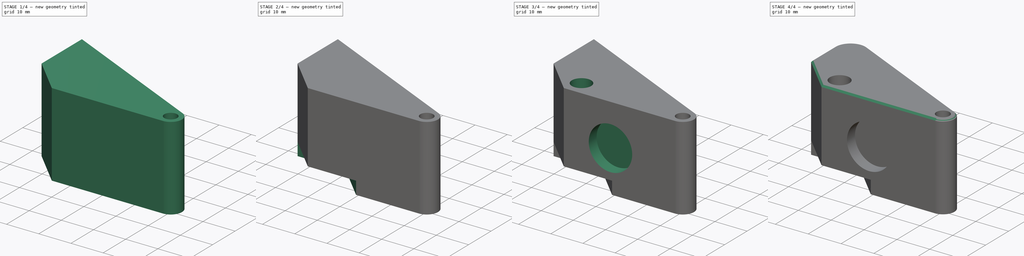
[diagram: build sequence overview — one tinted view per stage of 4, left to right]
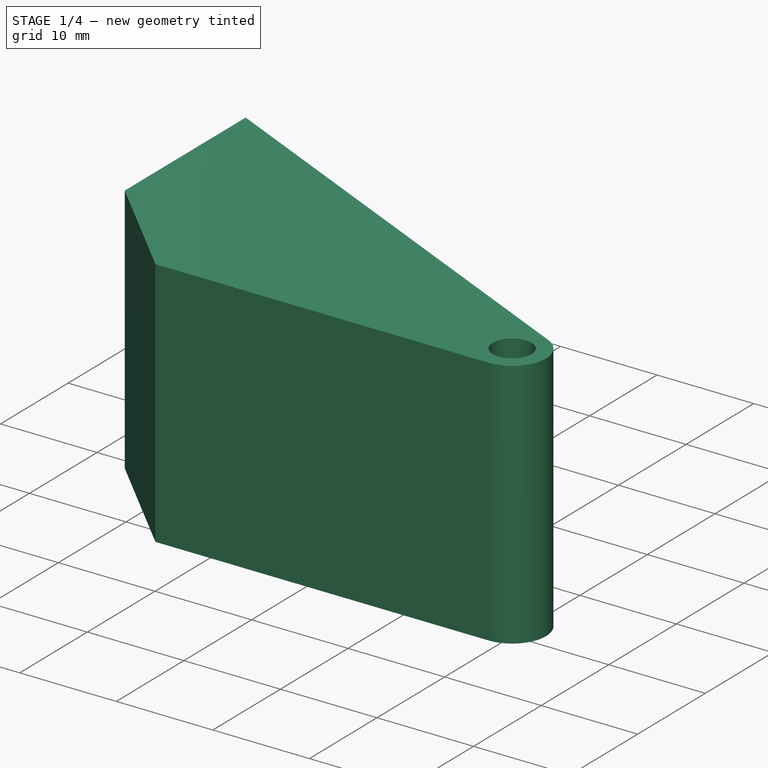
[diagram: stage 1 of 4 — iso view after this stage's code; geometry added in this stage tinted green]
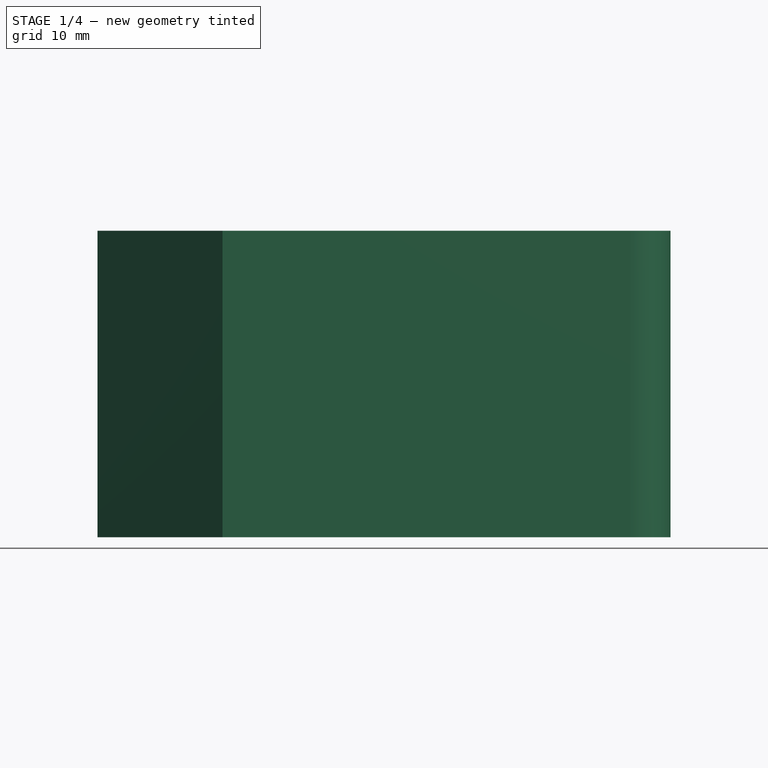
[diagram: stage 1 of 4 — front view after this stage's code; geometry added in this stage tinted green]
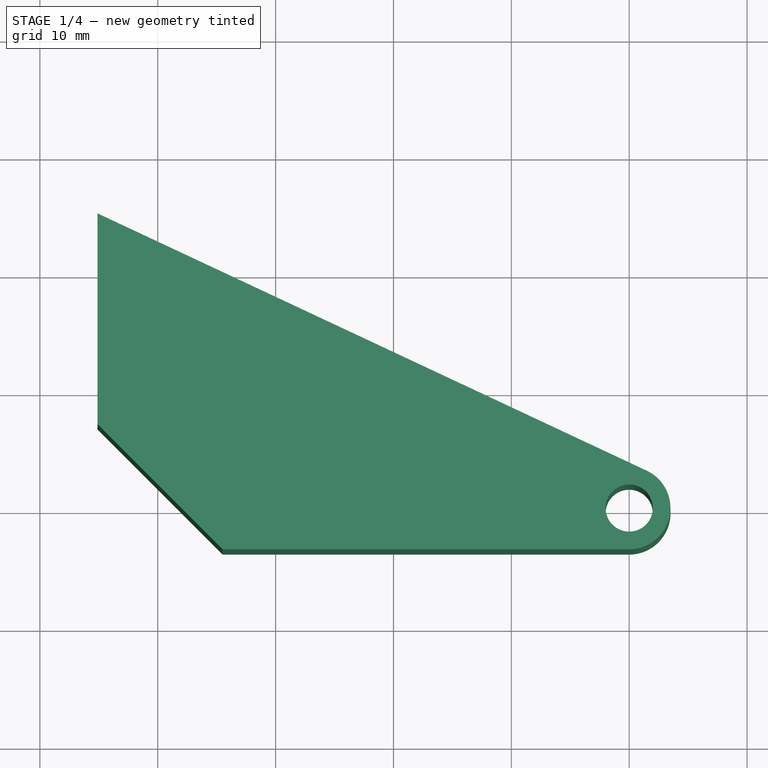
[diagram: stage 1 of 4 — top view after this stage's code; geometry added in this stage tinted green]
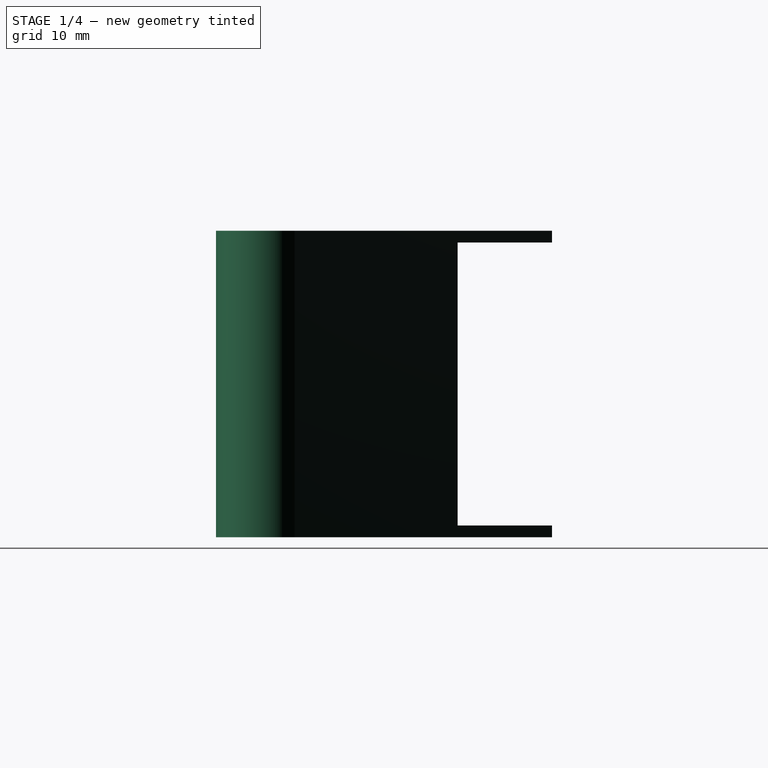
[diagram: stage 1 of 4 — right view after this stage's code; geometry added in this stage tinted green]
FCSTD DOCUMENT  (FreeCAD 0.18.4R)
Label: tension-arm
License: All rights reserved
LicenseURL: http://en.wikipedia.org/wiki/All_rights_reserved
objects: Sketcher::SketchObject×5, PartDesign::Pocket×4, PartDesign::Chamfer×2, PartDesign::Fillet×2, PartDesign::Pad×1, PartDesign::Plane×1, PartDesign::Body×1
note: 21 computed .brp shape members not serialized (recipe doc carries the construction recipe); baked Part::Feature solids carry a one-line shape summary decoded from their .brp

FEATURE [Sketcher::SketchObject] Sketch
  MapMode = 5
  Support = -> [XY_Plane]
  sketch-geometry (6):
    g0: Circle CenterX=0 CenterY=0 CenterZ=0 NormalX=0 NormalY=0 NormalZ=1 AngleXU=0 Radius=2
    g1: ArcOfCircle CenterX=0 CenterY=0 CenterZ=0 NormalX=0 NormalY=0 NormalZ=1 AngleXU=0 Radius=3.5 StartAngle=4.71239 EndAngle=7.4158
    g2: LineSegment StartX=-45.1066 StartY=25 StartZ=0 EndX=1.48503 EndY=3.16934 EndZ=0
    g3: LineSegment StartX=1.46718e-06 StartY=-3.5 StartZ=0 EndX=-34.5 EndY=-3.5 EndZ=0
    g4: LineSegment StartX=-34.5 StartY=-3.5 StartZ=0 EndX=-45.1066 EndY=7.1066 EndZ=0
    g5: LineSegment StartX=-45.1066 StartY=7.1066 StartZ=0 EndX=-45.1066 EndY=25 EndZ=0
  constraints (17):
    c: Coincident(g0,g-1)
    c: Coincident(g1,g0)
    c: Coincident(g2,g1)
    c: Tangent(g2,g1)
    c: Diameter(g1) = 7
    c: Coincident(g3,g4)
    c: Coincident(g4,g5)
    c: Tangent(g3,g1)
    c: Angle(g3,g4) = 2.35619
    c: Coincident(g1,g3)
    c: Distance(g4) = 15
    c: Distance(g3) = 34.5
    c: Coincident(g5,g2)
    c: Horizontal(g3)
    c: Vertical(g5)
    c: Diameter(g0) = 4
    c: DistanceY(g0,g2) = 25
FEATURE [PartDesign::Pad] Pad
  Length = 26
  Length2 = 100
  Profile = -> Sketch
  Type = 0
FEATURE [PartDesign::Plane] DatumPlane001
  AttachmentOffset = pos=(0,0,13) rot=(0,0,1;0rad)
  Length = 63.523
  MapMode = 2
  Placement = pos=(0,0,13) rot=(0,0,1;0rad)
  ResizeMode = 0
  Support = -> [X_Axis]
  Width = 40.5518
FEATURE [Sketcher::SketchObject] Sketch001
  MapMode = 5
  Placement = pos=(0,0,13) rot=(0,0,1;0rad)
  Support = -> [DatumPlane001]
  sketch-geometry (3):
    g0: LineSegment StartX=-60 StartY=17 StartZ=0 EndX=-10 EndY=17 EndZ=0
    g1: LineSegment StartX=-10 StartY=17 StartZ=0 EndX=-60 EndY=55 EndZ=0
    g2: LineSegment StartX=-60 StartY=55 StartZ=0 EndX=-60 EndY=17 EndZ=0
  constraints (9):
    c: Coincident(g0,g1)
    c: Coincident(g1,g2)
    c: Vertical(g2)
    c: Coincident(g2,g0)
    c: Horizontal(g0)
    c: DistanceX(g0,g-1) = 60
    c: DistanceX(g0,g-1) = 10
    c: DistanceY(g-1,g0) = 17
    c: DistanceY(g-1,g1) = 55
FEATURE [PartDesign::Pocket] Pocket
  BaseFeature = -> Pad
  Length = 12
  Length2 = 12
  Profile = -> Sketch001
  Type = 4
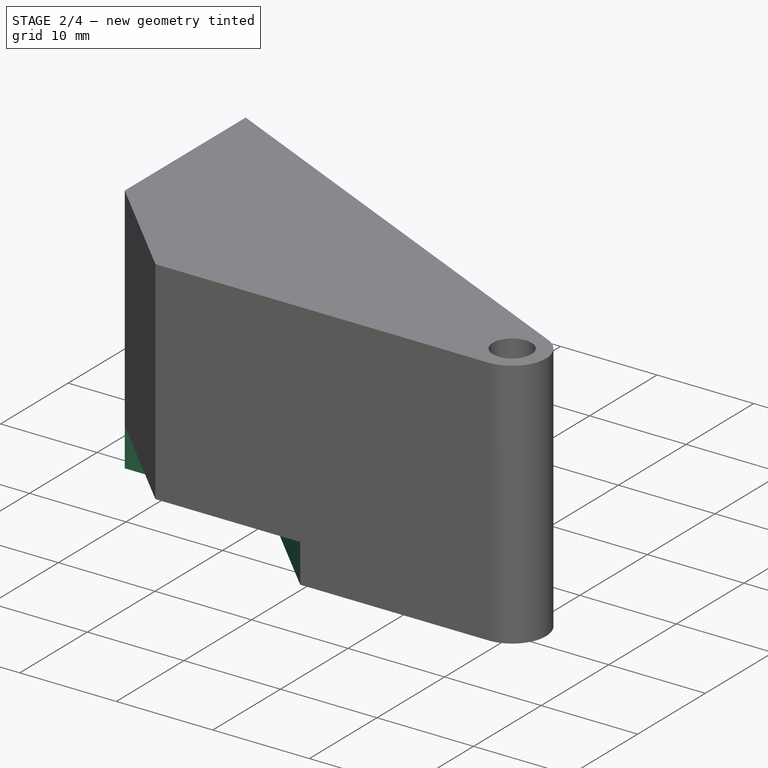
[diagram: stage 2 of 4 — iso view after this stage's code; geometry added in this stage tinted green]
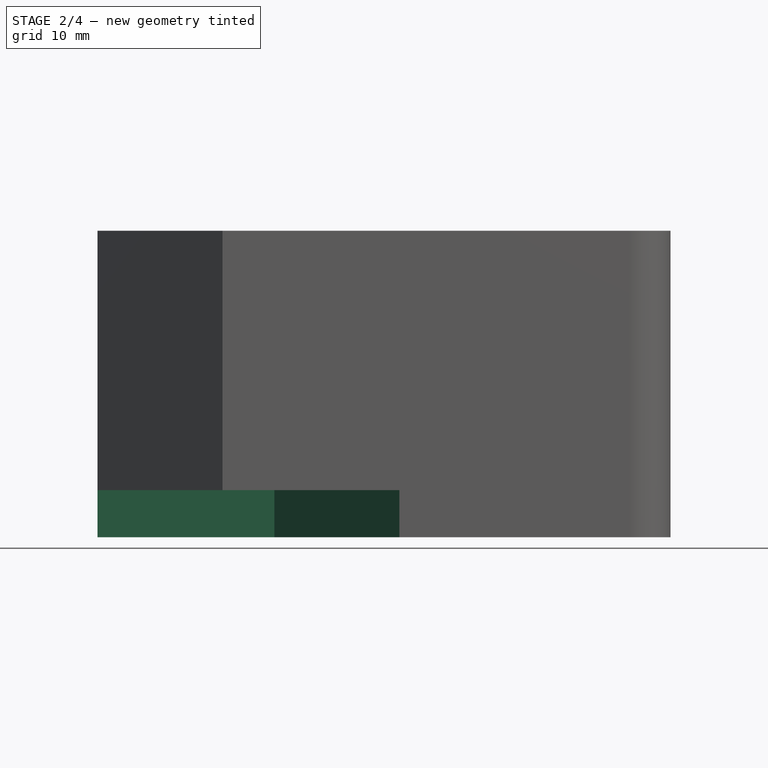
[diagram: stage 2 of 4 — front view after this stage's code; geometry added in this stage tinted green]
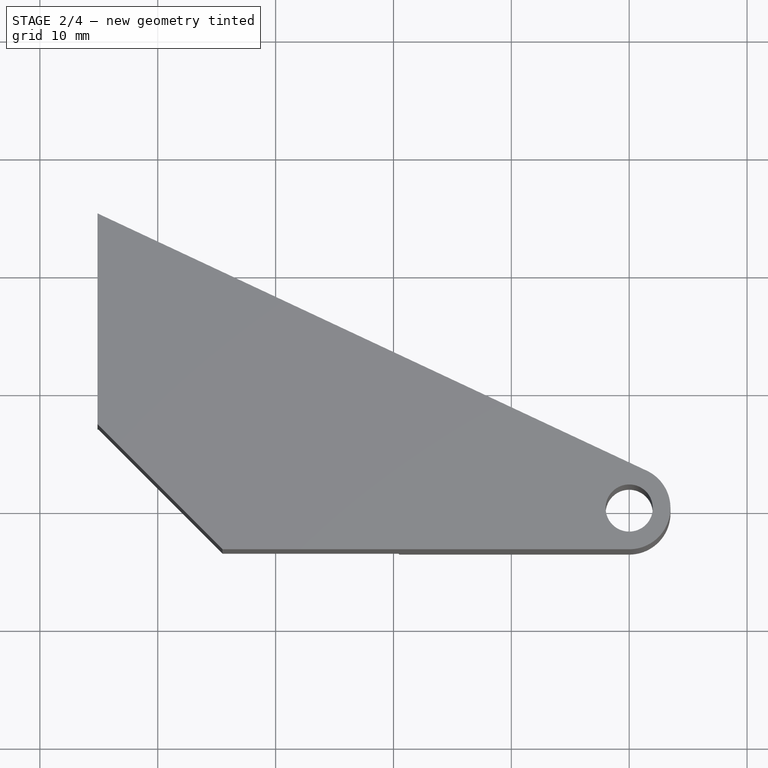
[diagram: stage 2 of 4 — top view after this stage's code; geometry added in this stage tinted green]
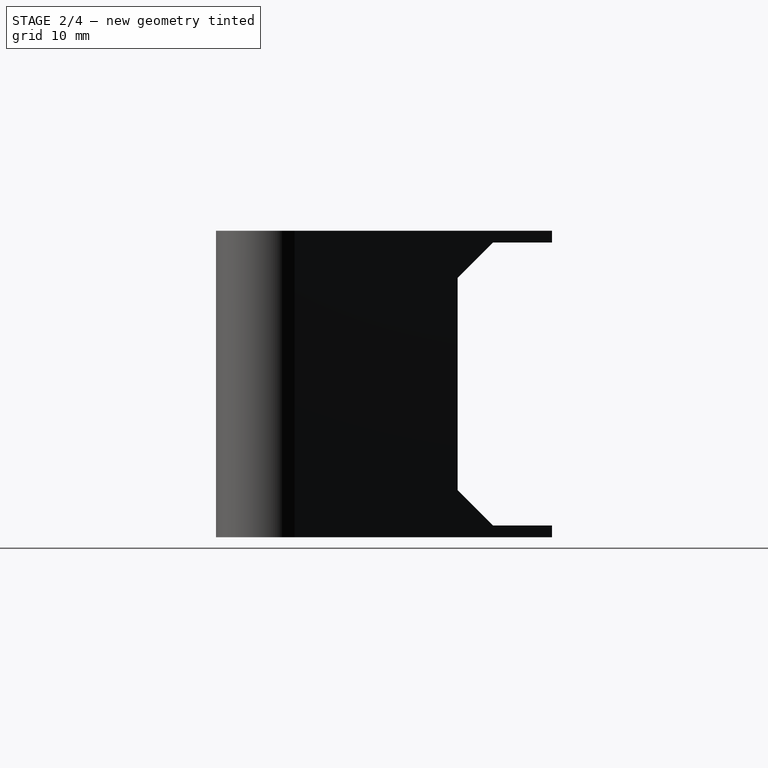
[diagram: stage 2 of 4 — right view after this stage's code; geometry added in this stage tinted green]
FEATURE [Sketcher::SketchObject] Sketch002
  MapMode = 5
  Support = -> [XY_Plane]
  sketch-geometry (4):
    g0: LineSegment StartX=-19.5 StartY=-3.5 StartZ=0 EndX=-30.1066 EndY=7.1066 EndZ=0
    g1: LineSegment StartX=-30.1066 StartY=7.1066 StartZ=0 EndX=-45.1066 EndY=7.1066 EndZ=0
    g2: LineSegment StartX=-45.1066 StartY=7.1066 StartZ=0 EndX=-34.5 EndY=-3.5 EndZ=0
    g3: LineSegment StartX=-34.5 StartY=-3.5 StartZ=0 EndX=-19.5 EndY=-3.5 EndZ=0
  constraints (12):
    c: Coincident(g0,g1)
    c: Coincident(g1,g2)
    c: Coincident(g2,g3)
    c: Coincident(g3,g0)
    c: Distance(g3) = 15
    c: Distance(g2) = 15
    c: Angle(g3,g2) = 2.35619
    c: Parallel(g2,g0)
    c: Parallel(g1,g3)
    c: Horizontal(g3)
    c: DistanceY(g0,g-1) = 3.5
    c: DistanceX(g2,g-1) = 34.5
FEATURE [PartDesign::Pocket] Pocket001
  BaseFeature = -> Pocket
  Length = 4
  Length2 = 100
  Profile = -> Sketch002
  Reversed = true
  Type = 0
FEATURE [PartDesign::Chamfer] Chamfer
  Base = -> Pocket001 [Edge34,Edge33]
  BaseFeature = -> Pocket001
  Size = 3
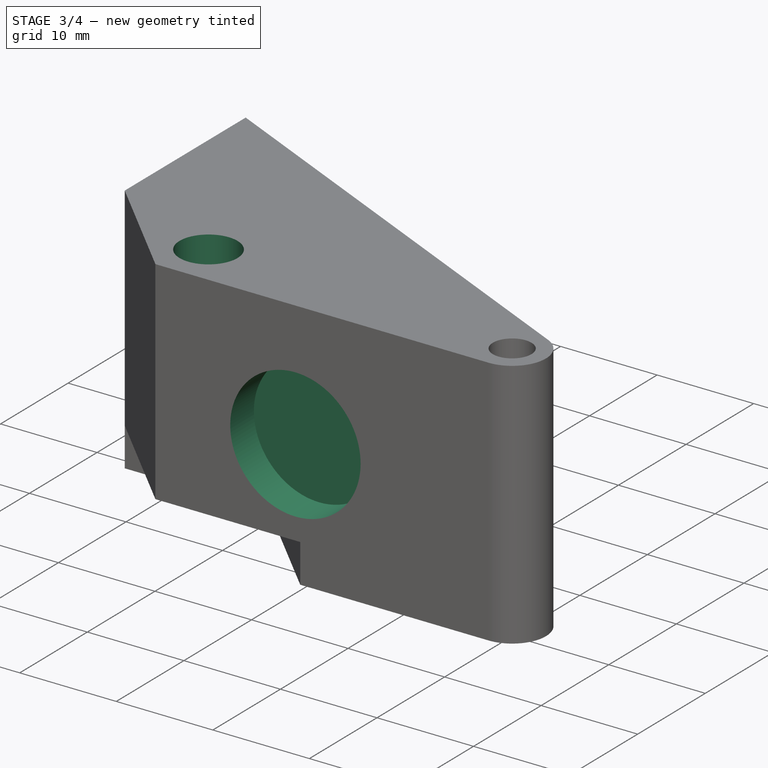
[diagram: stage 3 of 4 — iso view after this stage's code; geometry added in this stage tinted green]
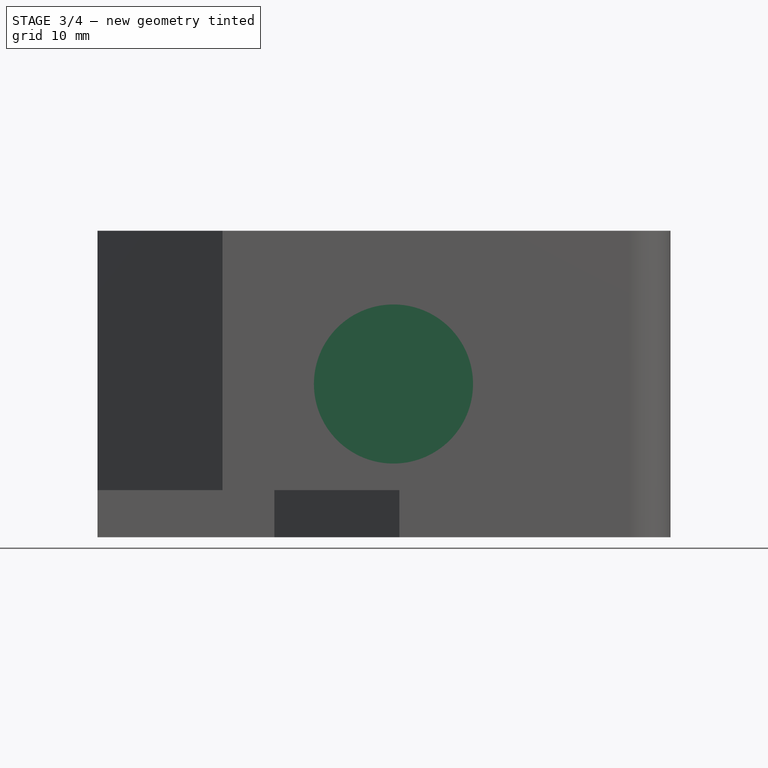
[diagram: stage 3 of 4 — front view after this stage's code; geometry added in this stage tinted green]
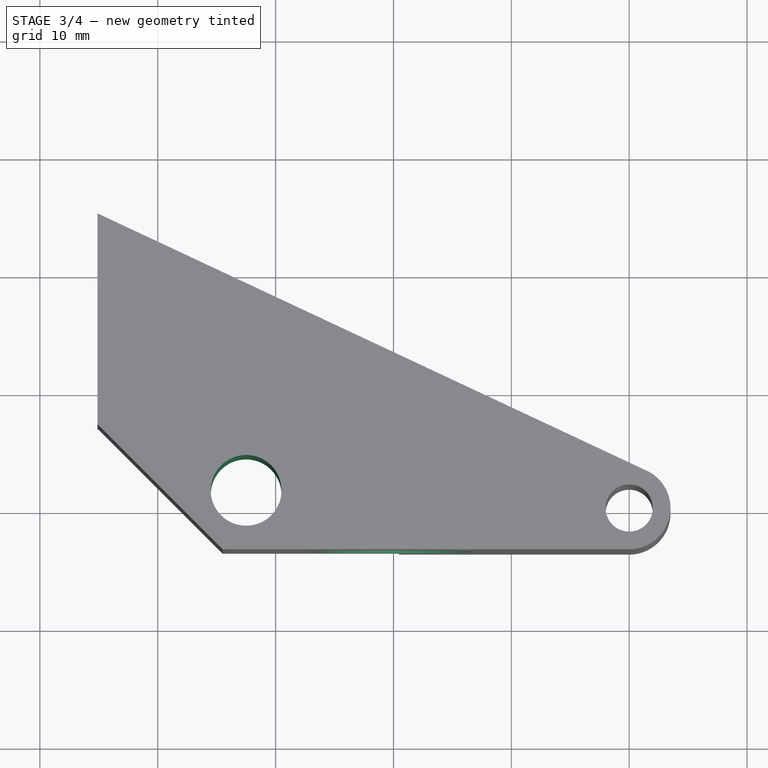
[diagram: stage 3 of 4 — top view after this stage's code; geometry added in this stage tinted green]
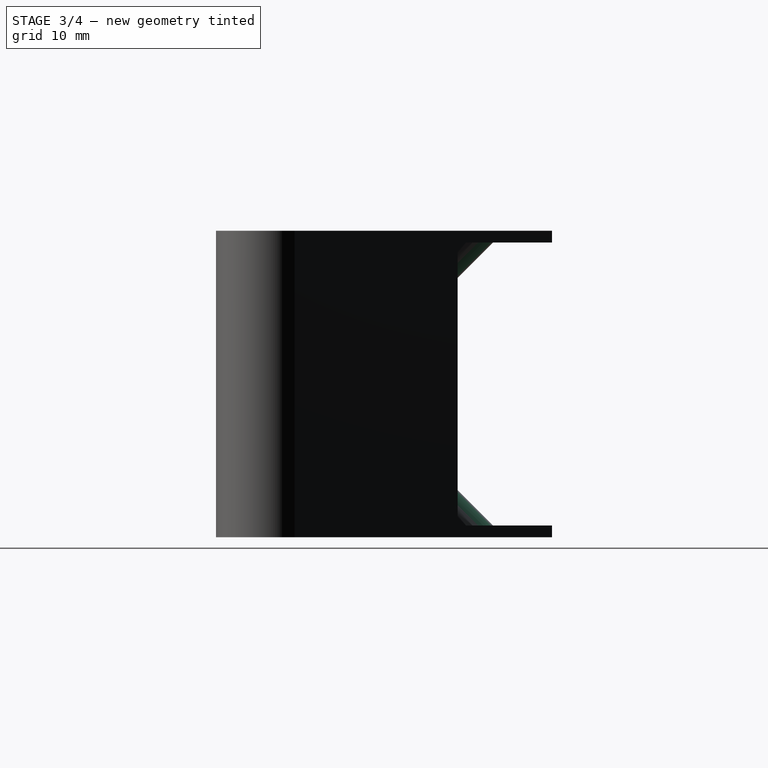
[diagram: stage 3 of 4 — right view after this stage's code; geometry added in this stage tinted green]
FEATURE [Sketcher::SketchObject] Sketch003
  MapMode = 5
  Support = -> [XY_Plane]
  sketch-geometry (1):
    g0: Circle CenterX=-32.5 CenterY=1.5 CenterZ=0 NormalX=0 NormalY=0 NormalZ=1 AngleXU=0 Radius=3
  constraints (3):
    c: Diameter(g0) = 6
    c: DistanceX(g0,g-1) = 32.5
    c: DistanceY(g-1,g0) = 1.5
FEATURE [PartDesign::Pocket] Pocket002
  BaseFeature = -> Chamfer
  Length = 26
  Length2 = 100
  Profile = -> Sketch003
  Reversed = true
  Type = 0
FEATURE [Sketcher::SketchObject] Sketch004
  MapMode = 5
  Placement = pos=(0,0,0) rot=(1,0,0;1.5708rad)
  Support = -> [XZ_Plane]
  sketch-geometry (1):
    g0: Circle CenterX=-20 CenterY=13 CenterZ=0 NormalX=0 NormalY=0 NormalZ=1 AngleXU=0 Radius=6.75
  constraints (3):
    c: Diameter(g0) = 13.5
    c: DistanceY(g-1,g0) = 13
    c: DistanceX(g0,g-1) = 20
FEATURE [PartDesign::Pocket] Pocket003
  BaseFeature = -> Pocket002
  Length = 5
  Length2 = 100
  Profile = -> Sketch004
  Reversed = true
  Type = 0
FEATURE [PartDesign::Fillet] Fillet
  Base = -> Pocket003 [Edge17,Edge16,Edge13,Edge2,Edge6]
  BaseFeature = -> Pocket003
  Radius = 4.5
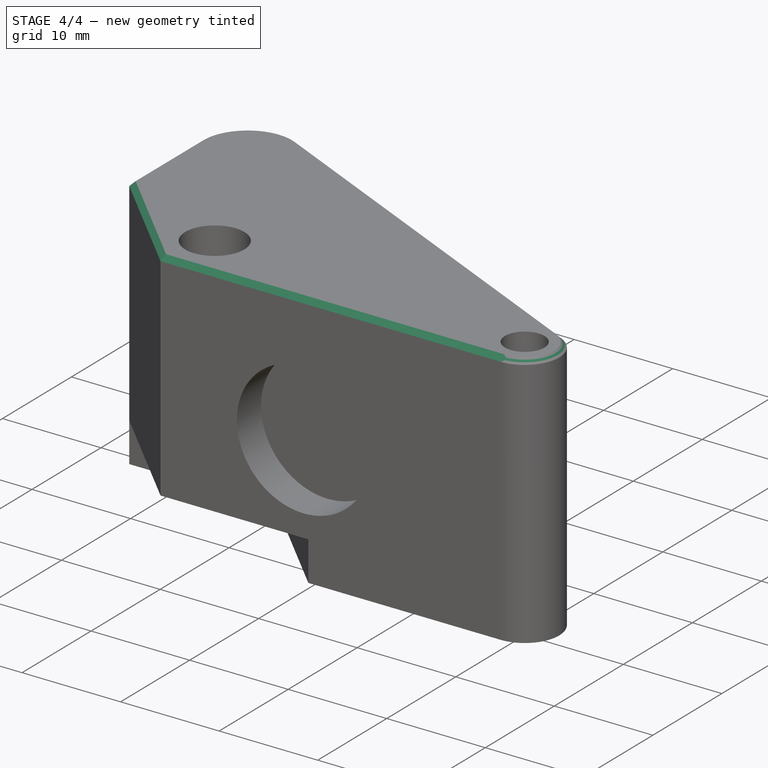
[diagram: stage 4 of 4 — iso view after this stage's code; geometry added in this stage tinted green]
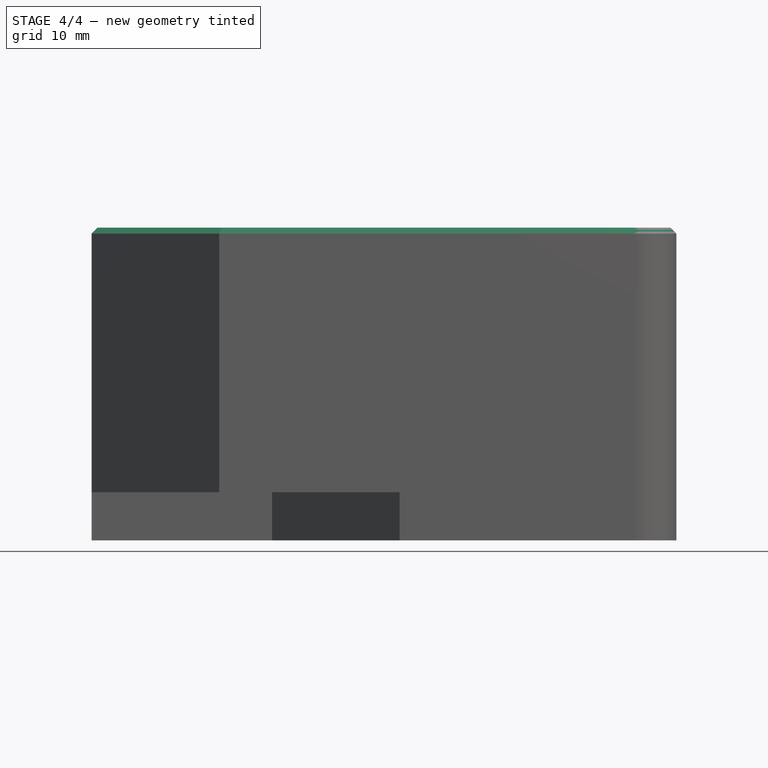
[diagram: stage 4 of 4 — front view after this stage's code; geometry added in this stage tinted green]
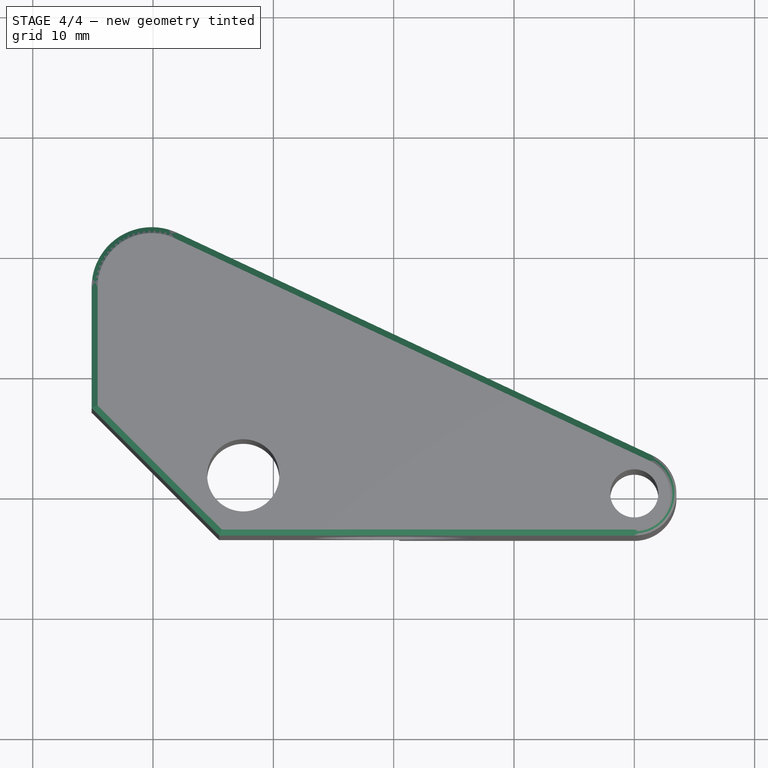
[diagram: stage 4 of 4 — top view after this stage's code; geometry added in this stage tinted green]
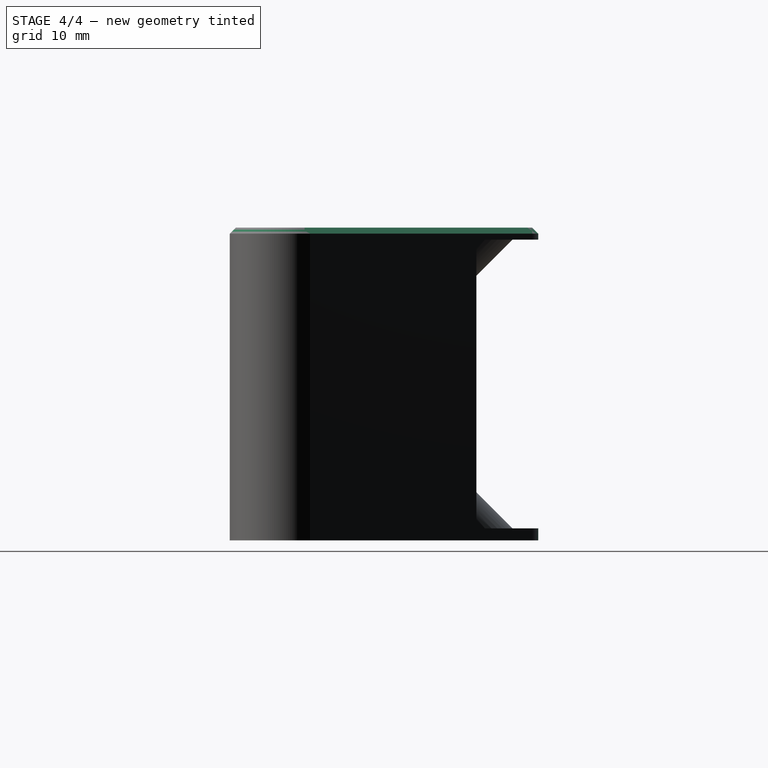
[diagram: stage 4 of 4 — right view after this stage's code; geometry added in this stage tinted green]
FEATURE [PartDesign::Fillet] Fillet001
  Base = -> Fillet [Edge12,Edge4]
  BaseFeature = -> Fillet
  Radius = 5
FEATURE [PartDesign::Chamfer] Chamfer001
  Base = -> Fillet001 [Edge25,Edge4]
  BaseFeature = -> Fillet001
  Size = 0.5
FEATURE [PartDesign::Body] Body
  Group = -> [Sketch,Pad,DatumPlane001,Sketch001,Pocket,Sketch002,Pocket001,Chamfer,Sketch003,Pocket002,Sketch004,Pocket003,Fillet,Fillet001,Chamfer001]
  Origin = -> Origin
  Tip = -> Chamfer001
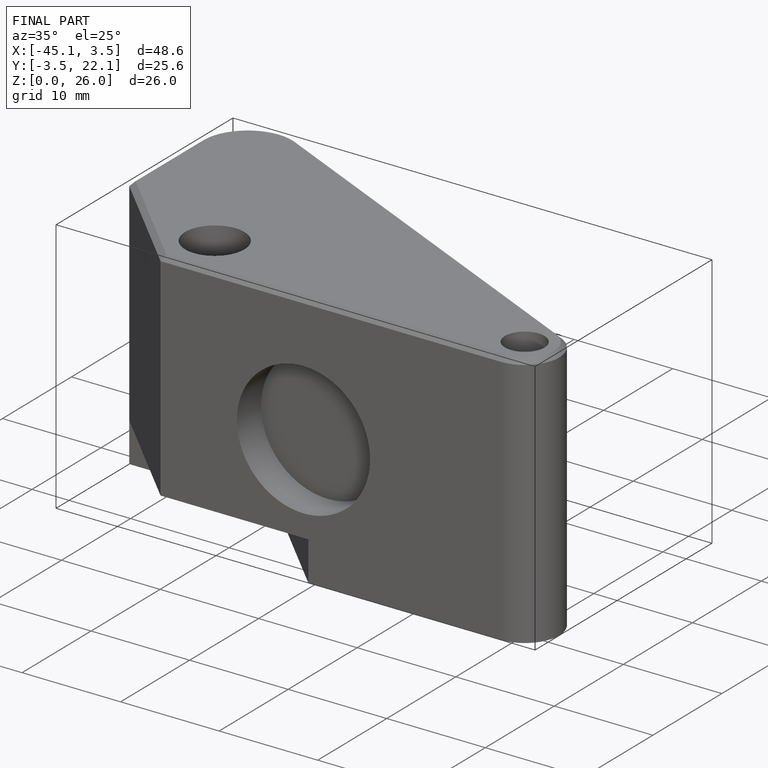
[diagram: finished part — iso view with bounding-box wireframe]
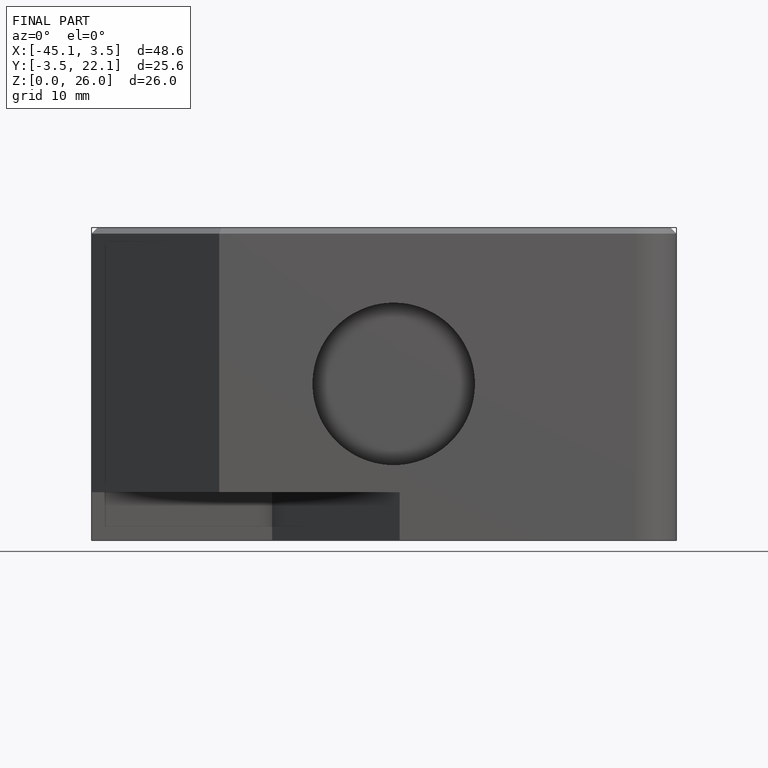
[diagram: finished part — front view with bounding-box wireframe]
